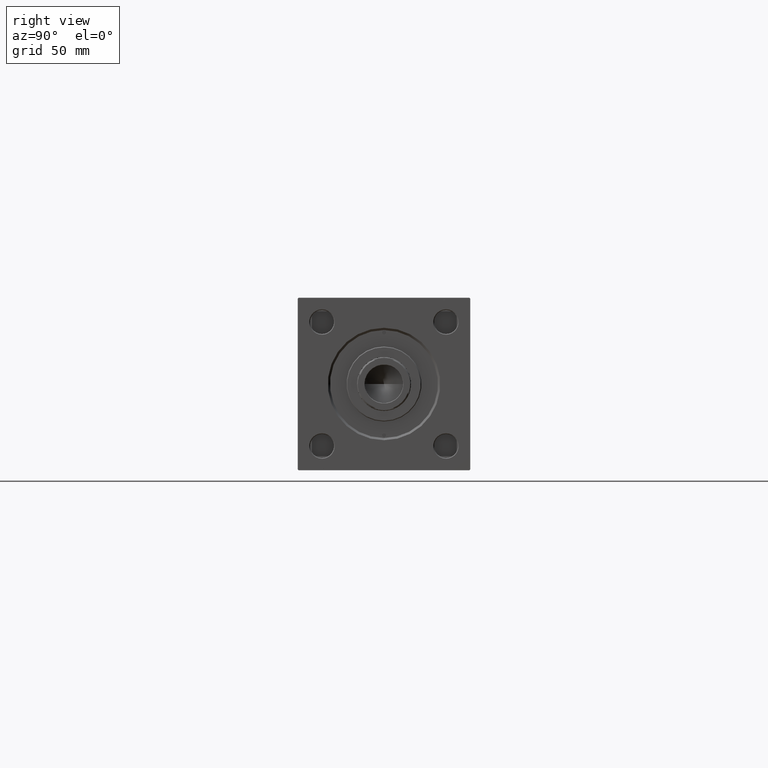
[diagram: clean part render]
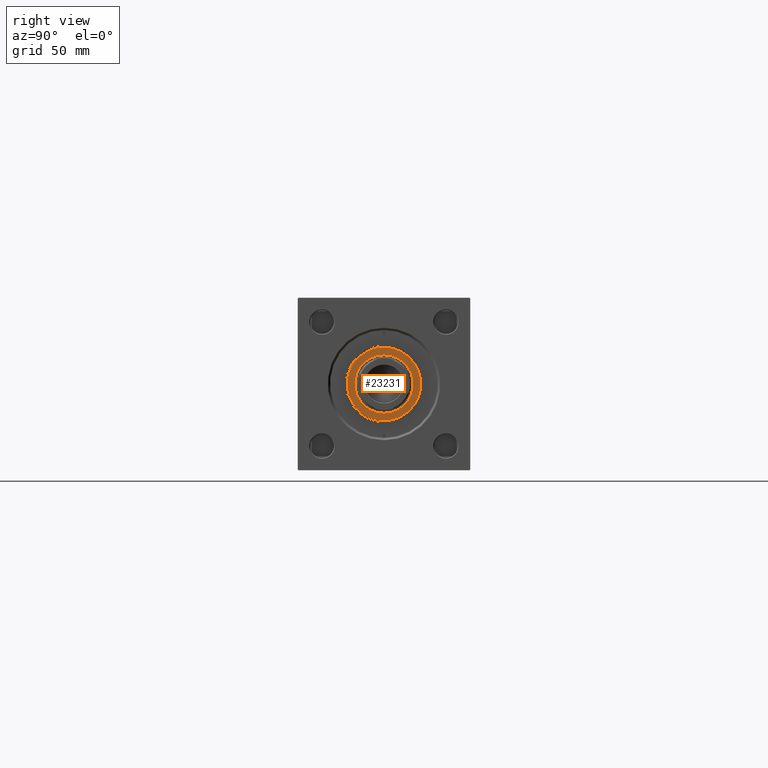
[diagram: same view with one face highlighted and labeled with its STEP entity id]
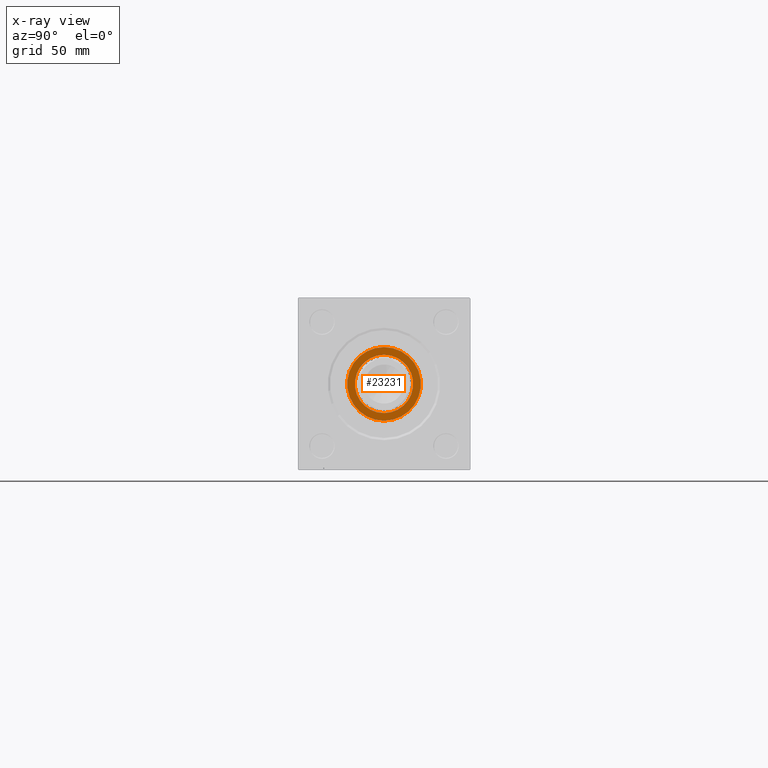
[diagram: x-ray of the same camera — body ghosted, the highlighted face saturated]
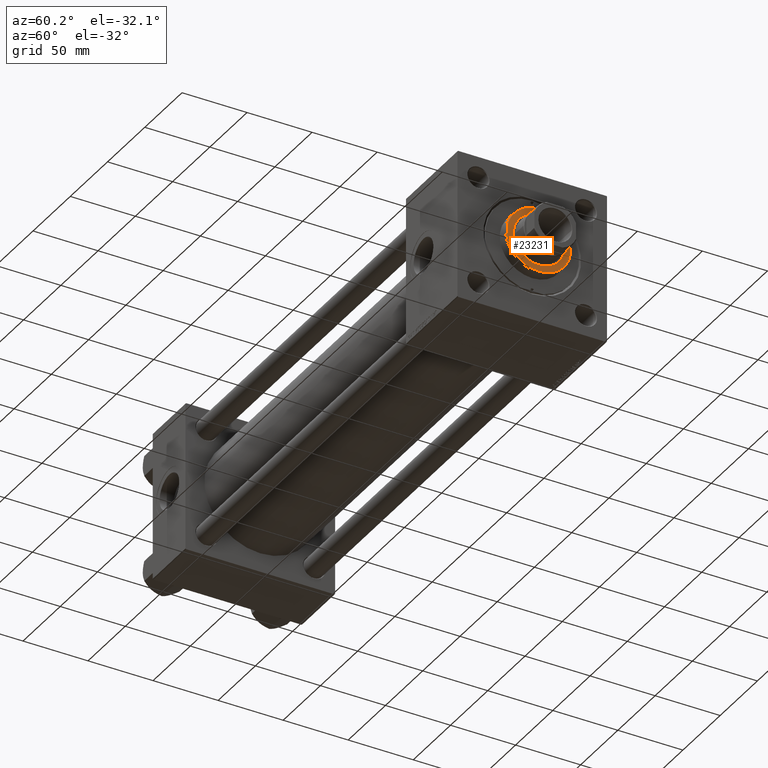
[diagram: same view with one face highlighted and labeled with its STEP entity id]
A machine part, right view. The second image highlights one B-rep face of the part: STEP entity #23231.
The next image is the same camera in x-ray: the body ghosted, the highlighted face saturated — about 0% of this face is hidden behind the body in this view.
A second angle (auxiliary view) of the same face is appended — the face is thin or edge-on in the first view.
In plain terms, the highlighted planar face has unit normal (1, 0, 0).
Its self-contained STEP definition (entity closure, byte-faithful):
#441 = VERTEX_POINT ( 'NONE', #36381 ) ;
#813 = DIRECTION ( 'NONE',  ( 1.000000000000000000, 0.000000000000000000, 0.000000000000000000 ) ) ;
#1514 = CIRCLE ( 'NONE', #23648, 19.50000000000000000 ) ;
#1920 = DIRECTION ( 'NONE',  ( 1.000000000000000000, 0.000000000000000000, 0.000000000000000000 ) ) ;
#5377 = VERTEX_POINT ( 'NONE', #45446 ) ;
#5420 = CARTESIAN_POINT ( 'NONE',  ( 0.000000000000000000, 0.000000000000000000, 37.69999999999999574 ) ) ;
#5742 = CARTESIAN_POINT ( 'NONE',  ( 0.000000000000000000, 0.000000000000000000, 37.69999999999999574 ) ) ;
#5769 = CARTESIAN_POINT ( 'NONE',  ( 0.000000000000000000, 0.000000000000000000, 37.69999999999999574 ) ) ;
#6393 = CARTESIAN_POINT ( 'NONE',  ( 0.000000000000000000, 0.000000000000000000, 37.69999999999999574 ) ) ;
#6529 = VERTEX_POINT ( 'NONE', #41810 ) ;
#7017 = PLANE ( 'NONE',  #10553 ) ;
#7368 = EDGE_LOOP ( 'NONE', ( #40298, #33336 ) ) ;
#10553 = AXIS2_PLACEMENT_3D ( 'NONE', #46013, #38836, #14433 ) ;
#10751 = DIRECTION ( 'NONE',  ( 1.000000000000000000, 0.000000000000000000, 0.000000000000000000 ) ) ;
#12219 = EDGE_CURVE ( 'NONE', #441, #5377, #46043, .T. ) ;
#12583 = CIRCLE ( 'NONE', #41268, 19.50000000000000000 ) ;
#14433 = DIRECTION ( 'NONE',  ( 1.000000000000000000, 0.000000000000000000, -0.000000000000000000 ) ) ;
#14515 = EDGE_CURVE ( 'NONE', #5377, #441, #22321, .T. ) ;
#20547 = DIRECTION ( 'NONE',  ( 0.000000000000000000, 0.000000000000000000, 1.000000000000000000 ) ) ;
#21235 = EDGE_CURVE ( 'NONE', #6529, #39311, #1514, .T. ) ;
#21371 = DIRECTION ( 'NONE',  ( 0.000000000000000000, 0.000000000000000000, 1.000000000000000000 ) ) ;
#21510 = AXIS2_PLACEMENT_3D ( 'NONE', #6393, #30030, #10751 ) ;
#22132 = FACE_OUTER_BOUND ( 'NONE', #7368, .T. ) ;
#22321 = CIRCLE ( 'NONE', #21510, 24.49999999999999645 ) ;
#23231 = ADVANCED_FACE ( 'NONE', ( #49900, #22132 ), #7017, .T. ) ;
#23648 = AXIS2_PLACEMENT_3D ( 'NONE', #5742, #21371, #28114 ) ;
#23737 = EDGE_LOOP ( 'NONE', ( #47018, #49472 ) ) ;
#28114 = DIRECTION ( 'NONE',  ( 1.000000000000000000, 0.000000000000000000, 0.000000000000000000 ) ) ;
#29150 = DIRECTION ( 'NONE',  ( 0.000000000000000000, 0.000000000000000000, 1.000000000000000000 ) ) ;
#30030 = DIRECTION ( 'NONE',  ( 0.000000000000000000, 0.000000000000000000, 1.000000000000000000 ) ) ;
#33261 = EDGE_CURVE ( 'NONE', #39311, #6529, #12583, .T. ) ;
#33336 = ORIENTED_EDGE ( 'NONE', *, *, #12219, .T. ) ;
#35496 = CARTESIAN_POINT ( 'NONE',  ( 19.50000000000000000, 0.000000000000000000, 37.69999999999999574 ) ) ;
#36381 = CARTESIAN_POINT ( 'NONE',  ( 24.49999999999999645, 3.031000827889698861E-15, 37.69999999999999574 ) ) ;
#38836 = DIRECTION ( 'NONE',  ( 0.000000000000000000, 0.000000000000000000, 1.000000000000000000 ) ) ;
#39311 = VERTEX_POINT ( 'NONE', #35496 ) ;
#40298 = ORIENTED_EDGE ( 'NONE', *, *, #14515, .T. ) ;
#41268 = AXIS2_PLACEMENT_3D ( 'NONE', #5420, #20547, #813 ) ;
#41810 = CARTESIAN_POINT ( 'NONE',  ( -19.50000000000000000, 2.388061258337338939E-15, 37.69999999999999574 ) ) ;
#45446 = CARTESIAN_POINT ( 'NONE',  ( -24.49999999999999645, 0.000000000000000000, 37.69999999999999574 ) ) ;
#46013 = CARTESIAN_POINT ( 'NONE',  ( 0.000000000000000000, 0.000000000000000000, 37.69999999999999574 ) ) ;
#46043 = CIRCLE ( 'NONE', #48543, 24.49999999999999645 ) ;
#47018 = ORIENTED_EDGE ( 'NONE', *, *, #33261, .F. ) ;
#48543 = AXIS2_PLACEMENT_3D ( 'NONE', #5769, #29150, #1920 ) ;
#49472 = ORIENTED_EDGE ( 'NONE', *, *, #21235, .F. ) ;
#49900 = FACE_BOUND ( 'NONE', #23737, .T. ) ;